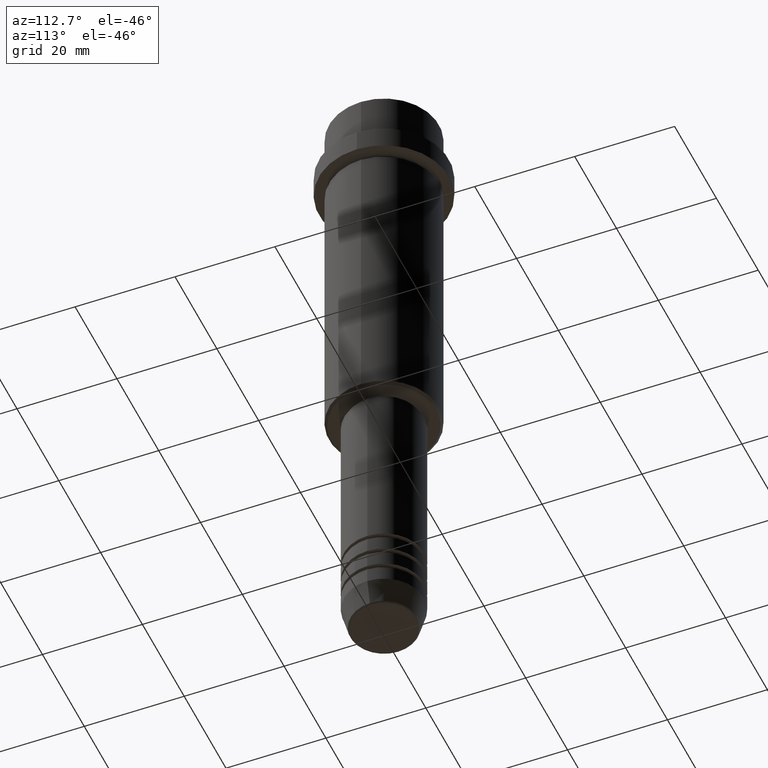
[diagram: clean part render]
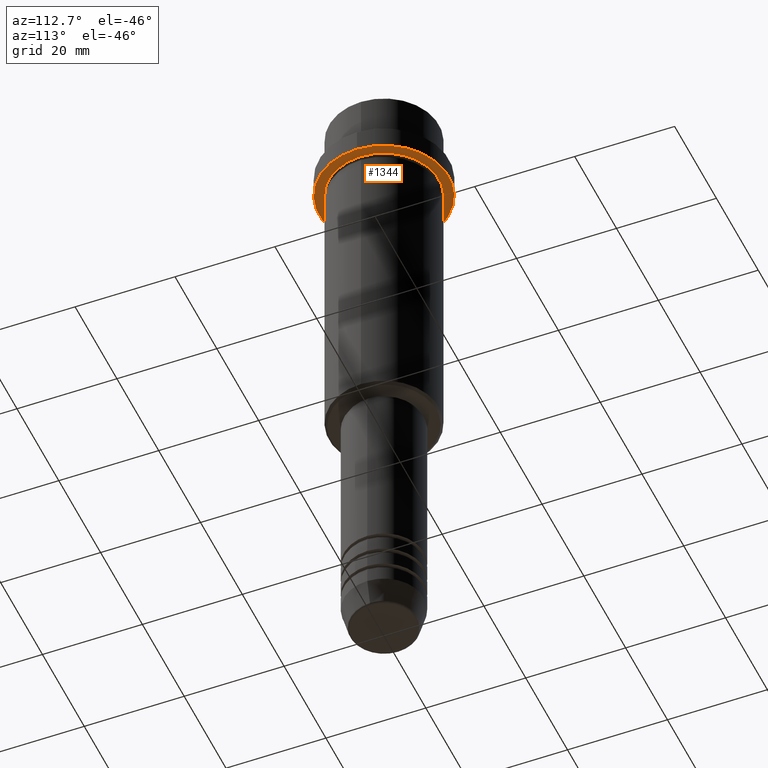
[diagram: same view with one face highlighted and labeled with its STEP entity id]
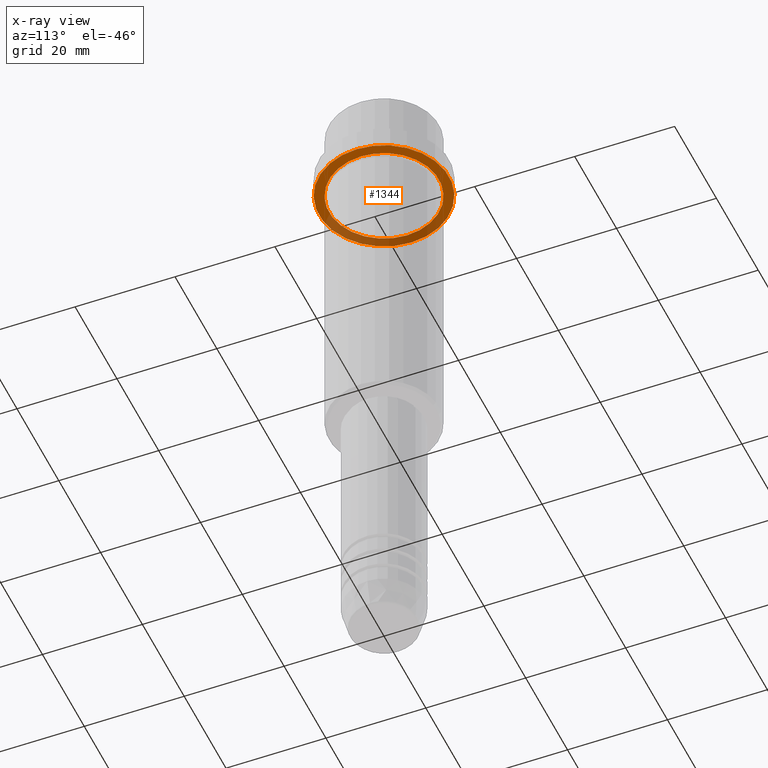
[diagram: x-ray of the same camera — body ghosted, the highlighted face saturated]
A machine part, auxiliary view. The second image highlights one B-rep face of the part: STEP entity #1344.
The next image is the same camera in x-ray: the body ghosted, the highlighted face saturated — about 34% of this face is hidden behind the body in this view.
In plain terms, the highlighted planar face has unit normal (0, 0, -1).
Its self-contained STEP definition (entity closure, byte-faithful):
#1 = CIRCLE ( 'NONE', #88, 13.00000000000000000 ) ;
#3 = VERTEX_POINT ( 'NONE', #1036 ) ;
#24 = CARTESIAN_POINT ( 'NONE',  ( -10.99999999999996625, 0.000000000000000000, -15.00000000000000355 ) ) ;
#42 = EDGE_CURVE ( 'NONE', #3, #511, #1, .T. ) ;
#80 = FACE_OUTER_BOUND ( 'NONE', #637, .T. ) ;
#88 = AXIS2_PLACEMENT_3D ( 'NONE', #375, #696, #1369 ) ;
#110 = DIRECTION ( 'NONE',  ( -1.000000000000000000, 0.000000000000000000, 0.000000000000000000 ) ) ;
#163 = CARTESIAN_POINT ( 'NONE',  ( 0.000000000000000000, 0.000000000000000000, -15.00000000000000178 ) ) ;
#193 = ORIENTED_EDGE ( 'NONE', *, *, #372, .T. ) ;
#200 = DIRECTION ( 'NONE',  ( 0.000000000000000000, 0.000000000000000000, -1.000000000000000000 ) ) ;
#230 = CARTESIAN_POINT ( 'NONE',  ( 0.000000000000000000, 0.000000000000000000, -15.00000000000000355 ) ) ;
#278 = EDGE_LOOP ( 'NONE', ( #1410, #193 ) ) ;
#293 = AXIS2_PLACEMENT_3D ( 'NONE', #163, #294, #600 ) ;
#294 = DIRECTION ( 'NONE',  ( -0.000000000000000000, -0.000000000000000000, 1.000000000000000000 ) ) ;
#296 = EDGE_CURVE ( 'NONE', #703, #940, #1051, .T. ) ;
#372 = EDGE_CURVE ( 'NONE', #940, #703, #1094, .T. ) ;
#375 = CARTESIAN_POINT ( 'NONE',  ( 0.000000000000000000, 0.000000000000000000, -15.00000000000000178 ) ) ;
#511 = VERTEX_POINT ( 'NONE', #1297 ) ;
#600 = DIRECTION ( 'NONE',  ( 1.000000000000000000, 0.000000000000000000, 0.000000000000000000 ) ) ;
#601 = PLANE ( 'NONE',  #1401 ) ;
#637 = EDGE_LOOP ( 'NONE', ( #659, #1276 ) ) ;
#657 = DIRECTION ( 'NONE',  ( -1.000000000000000000, 0.000000000000000000, 0.000000000000000000 ) ) ;
#659 = ORIENTED_EDGE ( 'NONE', *, *, #42, .F. ) ;
#696 = DIRECTION ( 'NONE',  ( -0.000000000000000000, -0.000000000000000000, 1.000000000000000000 ) ) ;
#703 = VERTEX_POINT ( 'NONE', #24 ) ;
#714 = AXIS2_PLACEMENT_3D ( 'NONE', #230, #991, #657 ) ;
#757 = DIRECTION ( 'NONE',  ( -0.000000000000000000, -0.000000000000000000, 1.000000000000000000 ) ) ;
#792 = EDGE_CURVE ( 'NONE', #511, #3, #906, .T. ) ;
#906 = CIRCLE ( 'NONE', #293, 13.00000000000000000 ) ;
#940 = VERTEX_POINT ( 'NONE', #1411 ) ;
#951 = DIRECTION ( 'NONE',  ( -1.000000000000000000, 0.000000000000000000, -0.000000000000000000 ) ) ;
#991 = DIRECTION ( 'NONE',  ( -0.000000000000000000, -0.000000000000000000, 1.000000000000000000 ) ) ;
#1036 = CARTESIAN_POINT ( 'NONE',  ( 13.00000000000000000, 0.000000000000000000, -15.00000000000000178 ) ) ;
#1051 = CIRCLE ( 'NONE', #1326, 10.99999999999996625 ) ;
#1084 = CARTESIAN_POINT ( 'NONE',  ( 0.000000000000000000, 0.000000000000000000, -15.00000000000000355 ) ) ;
#1094 = CIRCLE ( 'NONE', #714, 10.99999999999996625 ) ;
#1276 = ORIENTED_EDGE ( 'NONE', *, *, #792, .F. ) ;
#1284 = CARTESIAN_POINT ( 'NONE',  ( 0.000000000000000000, 13.00000000000000000, -15.00000000000000355 ) ) ;
#1297 = CARTESIAN_POINT ( 'NONE',  ( -13.00000000000000000, 1.592040838891559095E-15, -15.00000000000000178 ) ) ;
#1298 = FACE_BOUND ( 'NONE', #278, .T. ) ;
#1326 = AXIS2_PLACEMENT_3D ( 'NONE', #1084, #757, #110 ) ;
#1344 = ADVANCED_FACE ( 'NONE', ( #1298, #80 ), #601, .T. ) ;
#1369 = DIRECTION ( 'NONE',  ( 1.000000000000000000, 0.000000000000000000, 0.000000000000000000 ) ) ;
#1401 = AXIS2_PLACEMENT_3D ( 'NONE', #1284, #200, #951 ) ;
#1410 = ORIENTED_EDGE ( 'NONE', *, *, #296, .T. ) ;
#1411 = CARTESIAN_POINT ( 'NONE',  ( 10.99999999999996625, 1.347111479062084460E-15, -15.00000000000000355 ) ) ;